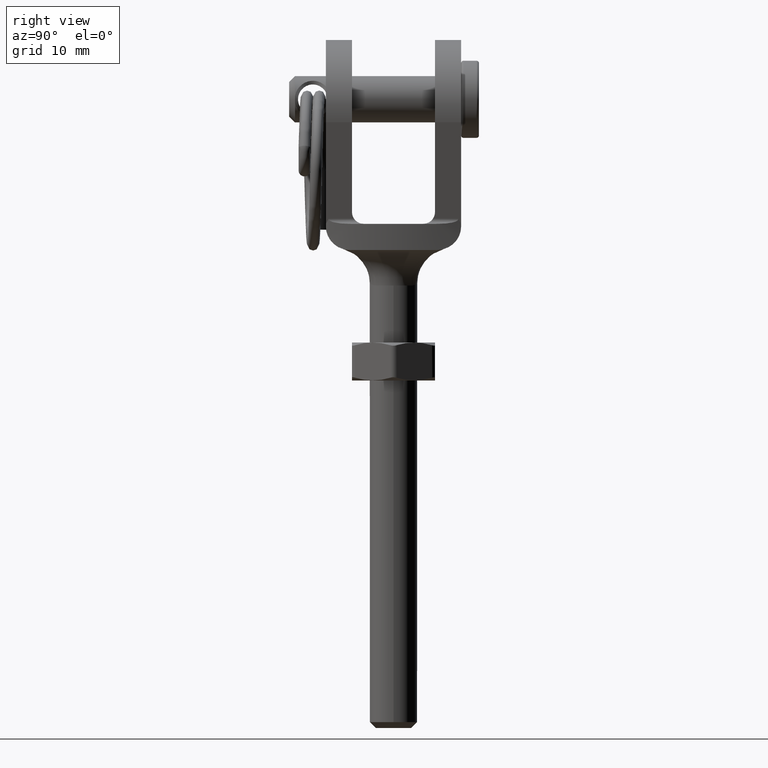
[diagram: clean part render]
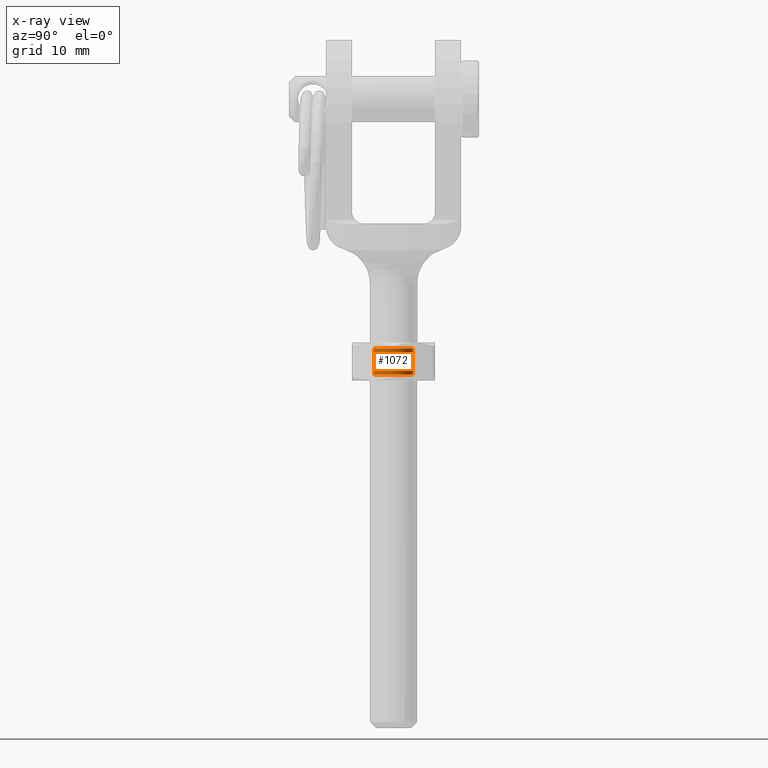
[diagram: x-ray — body ghosted, one internal face saturated and labeled with its STEP entity id]
A machine part, right view, then the same camera in x-ray: the body is ghosted and one INTERNAL B-rep face — a face not visible from any outside direction — is saturated and labeled: STEP entity #1072.
In plain terms, the highlighted cylindrical surface (bore or boss wall) has radius 1.65 mm, axis along (0, 0, -1).
Its self-contained STEP definition (entity closure, byte-faithful):
#146 = CARTESIAN_POINT ( 'NONE',  ( 0.000000000000000000, -1.100000000000000977, 0.000000000000000000 ) ) ;
#278 = CYLINDRICAL_SURFACE ( 'NONE', #10928, 1.649999999999998801 ) ;
#606 = CIRCLE ( 'NONE', #17820, 1.649999999999998801 ) ;
#1072 = ADVANCED_FACE ( 'NONE', ( #10949, #8487 ), #278, .F. ) ;
#1669 = DIRECTION ( 'NONE',  ( 0.000000000000000000, 0.000000000000000000, 1.000000000000000000 ) ) ;
#2129 = ORIENTED_EDGE ( 'NONE', *, *, #6502, .T. ) ;
#2262 = DIRECTION ( 'NONE',  ( -0.000000000000000000, 1.000000000000000000, -0.000000000000000000 ) ) ;
#2694 = AXIS2_PLACEMENT_3D ( 'NONE', #146, #10979, #1669 ) ;
#2790 = CARTESIAN_POINT ( 'NONE',  ( 0.000000000000000000, 1.100000000000000755, 1.649999999999998801 ) ) ;
#5528 = EDGE_LOOP ( 'NONE', ( #17000 ) ) ;
#6183 = CARTESIAN_POINT ( 'NONE',  ( 0.000000000000000000, 1.100000000000000755, 0.000000000000000000 ) ) ;
#6502 = EDGE_CURVE ( 'NONE', #10289, #10289, #606, .T. ) ;
#7741 = EDGE_CURVE ( 'NONE', #10794, #10794, #16812, .T. ) ;
#8450 = CARTESIAN_POINT ( 'NONE',  ( 0.000000000000000000, 1.600000000000000089, 0.000000000000000000 ) ) ;
#8487 = FACE_OUTER_BOUND ( 'NONE', #5528, .T. ) ;
#9047 = CARTESIAN_POINT ( 'NONE',  ( 0.000000000000000000, -1.100000000000000977, 1.649999999999998801 ) ) ;
#10289 = VERTEX_POINT ( 'NONE', #2790 ) ;
#10794 = VERTEX_POINT ( 'NONE', #9047 ) ;
#10928 = AXIS2_PLACEMENT_3D ( 'NONE', #8450, #2262, #11805 ) ;
#10949 = FACE_OUTER_BOUND ( 'NONE', #14765, .T. ) ;
#10979 = DIRECTION ( 'NONE',  ( -0.000000000000000000, -1.000000000000000000, -0.000000000000000000 ) ) ;
#11805 = DIRECTION ( 'NONE',  ( 0.000000000000000000, 0.000000000000000000, 1.000000000000000000 ) ) ;
#14765 = EDGE_LOOP ( 'NONE', ( #2129 ) ) ;
#15351 = DIRECTION ( 'NONE',  ( 0.000000000000000000, 0.000000000000000000, 1.000000000000000000 ) ) ;
#16740 = DIRECTION ( 'NONE',  ( 0.000000000000000000, 1.000000000000000000, 0.000000000000000000 ) ) ;
#16812 = CIRCLE ( 'NONE', #2694, 1.649999999999998801 ) ;
#17000 = ORIENTED_EDGE ( 'NONE', *, *, #7741, .T. ) ;
#17820 = AXIS2_PLACEMENT_3D ( 'NONE', #6183, #16740, #15351 ) ;